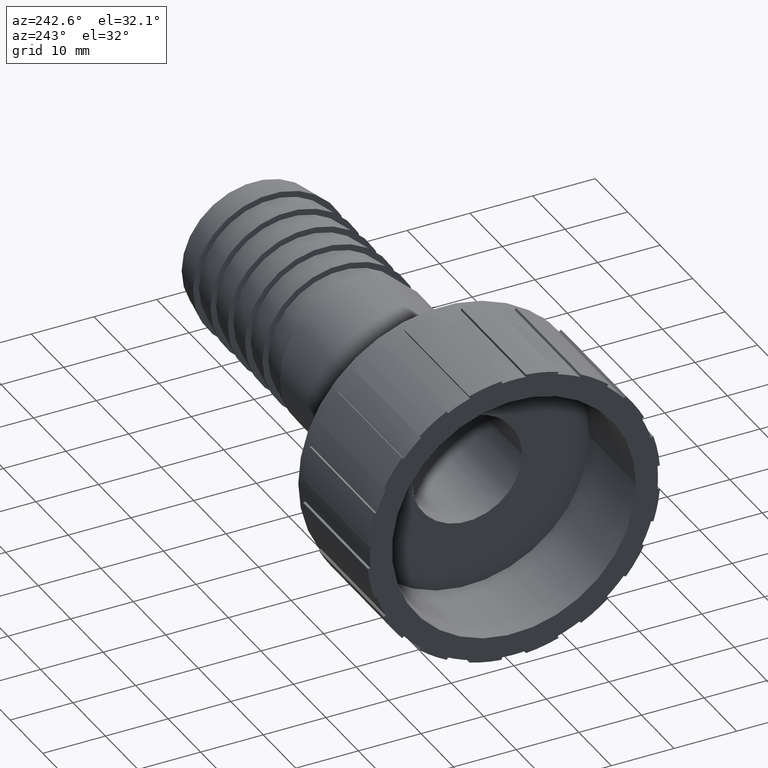
[diagram: clean part render]
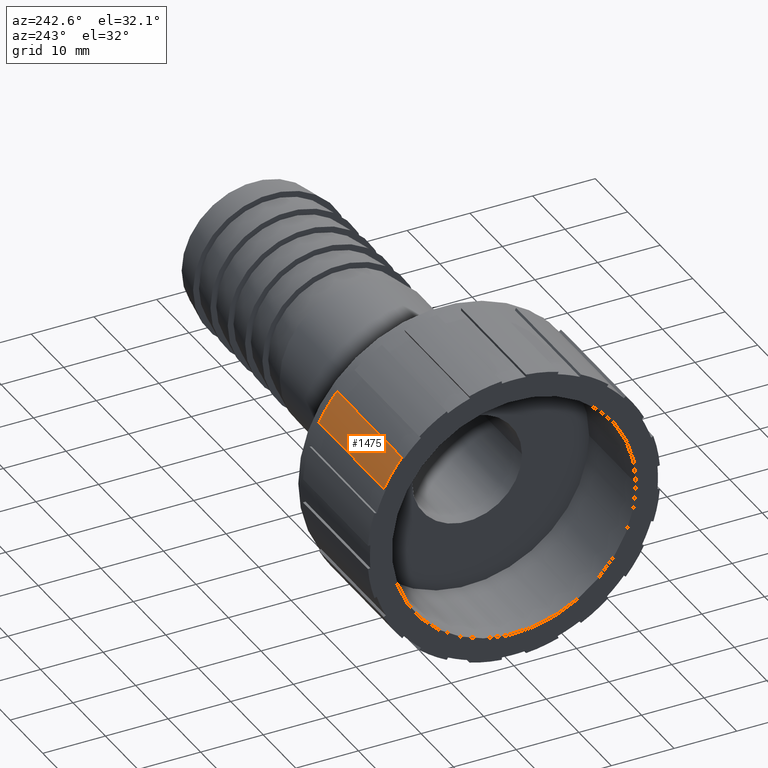
[diagram: same view with one face highlighted and labeled with its STEP entity id]
A machine part, auxiliary view. The second image highlights one B-rep face of the part: STEP entity #1475.
In plain terms, the highlighted cylindrical surface (partial cylindrical patch) has radius 23.3712 mm, axis along (-1, 0, 0).
Its self-contained STEP definition (entity closure, byte-faithful):
#24=CYLINDRICAL_SURFACE('',#1626,23.3712);
#69=CIRCLE('',#1550,23.3712);
#99=CIRCLE('',#1583,23.3712);
#194=FACE_OUTER_BOUND('',#279,.T.);
#279=EDGE_LOOP('',(#1204,#1205,#1206,#1207));
#434=LINE('',#2374,#562);
#440=LINE('',#2386,#568);
#562=VECTOR('',#1834,20.);
#568=VECTOR('',#1842,20.);
#689=VERTEX_POINT('',#2370);
#691=VERTEX_POINT('',#2373);
#694=VERTEX_POINT('',#2380);
#696=VERTEX_POINT('',#2384);
#837=EDGE_CURVE('',#691,#689,#434,.T.);
#843=EDGE_CURVE('',#694,#696,#440,.T.);
#865=EDGE_CURVE('',#694,#689,#69,.T.);
#896=EDGE_CURVE('',#696,#691,#99,.T.);
#1204=ORIENTED_EDGE('',*,*,#837,.T.);
#1205=ORIENTED_EDGE('',*,*,#865,.F.);
#1206=ORIENTED_EDGE('',*,*,#843,.T.);
#1207=ORIENTED_EDGE('',*,*,#896,.T.);
#1475=ADVANCED_FACE('',(#194),#24,.T.);
#1550=AXIS2_PLACEMENT_3D('',#2428,#1879,#1880);
#1583=AXIS2_PLACEMENT_3D('',#2465,#1946,#1947);
#1626=AXIS2_PLACEMENT_3D('',#2512,#2034,#2035);
#1834=DIRECTION('',(-1.,0.,0.));
#1842=DIRECTION('',(1.,0.,0.));
#1879=DIRECTION('center_axis',(-1.,0.,0.));
#1880=DIRECTION('ref_axis',(0.,0.,1.));
#1946=DIRECTION('center_axis',(-1.,0.,0.));
#1947=DIRECTION('ref_axis',(0.,0.,1.));
#2034=DIRECTION('center_axis',(-1.,0.,0.));
#2035=DIRECTION('ref_axis',(0.,-1.,0.));
#2370=CARTESIAN_POINT('',(0.,20.7717556382177,10.7120099489391));
#2373=CARTESIAN_POINT('',(20.,20.7717556382177,10.7120099489391));
#2374=CARTESIAN_POINT('',(10.,20.7717556382177,10.7120099489391));
#2380=CARTESIAN_POINT('',(0.,17.8456134877641,15.0912911536863));
#2384=CARTESIAN_POINT('',(20.,17.8456134877641,15.0912911536863));
#2386=CARTESIAN_POINT('',(10.,17.8456134877641,15.0912911536863));
#2428=CARTESIAN_POINT('Origin',(0.,0.,0.));
#2465=CARTESIAN_POINT('Origin',(20.,0.,0.));
#2512=CARTESIAN_POINT('Origin',(10.,0.,0.));